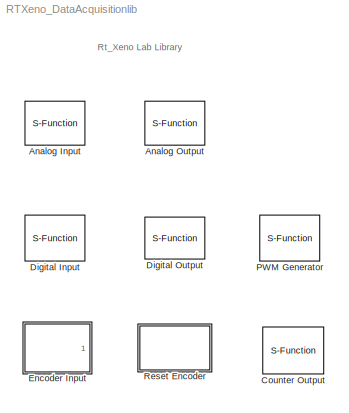
MODEL RTXeno_DataAcquisitionlib
KIND library
BLOCK [S-Function] Analog Input
  EnableBusSupport = off
  FunctionName = sfun_xeno_adc
  MaskCallbackString = |
  MaskDescription = This block is used to select A/D converter parameters for selected data acquisition device.\nParameters are analog input channel(s) to use, operation mode. Operation mode is a scalar entry.\nOther parameter is an array whose size must be same as number of analog input channels, e.g [0 1 ..]
  MaskDisplay = fprintf('ADC')
  MaskEnableString = on,on
  MaskIconFrame = on
  MaskIconOpaque = on
  MaskIconRotate = none
  MaskIconUnits = autoscale
  MaskPortRotate = default
  MaskPromptString = Analog Input Channels|Operation Range
  MaskStyleString = edit,edit
  MaskToolTipString = on,on
  MaskTunableValueString = off,off
  MaskType = RTXeno-Lab A/D Converter Block
  MaskValueString = [ 0 1 2 3 4 5 6 7]|0
  MaskVariables = channel=@1;range=@2;
  MaskVisibilityString = on,on
  Parameters = channel,range
  Ports = [0, 1]
  SID = 1
BLOCK [S-Function] Analog Output
  EnableBusSupport = off
  FunctionName = sfun_xeno_dac
  MaskCallbackString = |||
  MaskDescription = This block is used to select D/A converter parameters for selected data acquisition device.\nParameters are analog output channel(s), operation mode, initial value(s) and final value(s). Operation mode is a scalar entry.\nOther parameters are arrays whose size must be same as number of analog output channels, e.g [0 1 ..]
  MaskDisplay = fprintf('DAC');\n\n
  MaskEnableString = on,on,on,on
  MaskIconFrame = on
  MaskIconOpaque = on
  MaskIconRotate = none
  MaskIconUnits = autoscale
  MaskPortRotate = default
  MaskPromptString = Analog Output Channel(s)|Operation Mode|Initial Value(s)|Final Value(s)
  MaskSelfModifiable = on
  MaskStyleString = edit,popup(Unipolar 10V|Bipolar 5V|Bipolar 10V),edit,edit
  MaskToolTipString = on,on,on,on
  MaskTunableValueString = off,off,off,off
  MaskType = RTXeno-Lab D/A Converter Block
  MaskValueString = [0 0 0 0 0 0 0 0]|Bipolar 10V|[0 0 0 0 0 0 0 0]|[0 0 0 0 0 0 0 0]
  MaskVariables = channel=@1;mode=@2;val=@3;fval=@4;
  MaskVisibilityString = on,on,on,on
  Parameters = channel,mode,val,fval
  Ports = [1]
  SID = 4
  Tag = sss
BLOCK [S-Function] Counter Output
  EnableBusSupport = off
  FunctionName = sfun_xeno_counter
  MaskCallbackString = ||
  MaskDescription = Counter block produces square wave signal based on user defined period.\nAlso, clock source can be selected according to the hardware.
  MaskDisplay = fprintf('Counter');
  MaskEnableString = on,on,on
  MaskIconFrame = on
  MaskIconOpaque = on
  MaskIconRotate = none
  MaskIconUnits = autoscale
  MaskPortRotate = default
  MaskPromptString = Clock Source|Period|Cntrlen
  MaskStyleString = popup(Counter|Watchdog),edit,edit
  MaskToolTipString = on,on,on
  MaskTunableValueString = off,off,off
  MaskType = RTXenoLab Counter Block
  MaskValueString = Counter|0|0
  MaskVariables = clock=@1;period=@2;cntrlen=@3;
  MaskVisibilityString = on,on,on
  Parameters = clock,period,cntrlen
  Ports = []
  SID = 3
BLOCK [S-Function] Digital Input
  EnableBusSupport = off
  FunctionName = sfun_xeno_digInput
  MaskDescription = This block is used to configure digital output device for selected data acquisition device.\nParameters are digital input channel(s) to use.\n    All parameters must be entered as array elements. For example  For example if the user wants to use channel 4 then he/she must edit related parameter area  [4].
  MaskDisplay = fprintf(' Digital\\nInput');
  MaskEnableString = on
  MaskIconFrame = on
  MaskIconOpaque = on
  MaskIconRotate = none
  MaskIconUnits = autoscale
  MaskPortRotate = default
  MaskPromptString = Digita Input Channel(s)
  MaskStyleString = edit
  MaskToolTipString = on
  MaskTunableValueString = off
  MaskType = RTXenoLab Digital Input Block
  MaskValueString = [0]
  MaskVariables = channels=@1;
  MaskVisibilityString = on
  Parameters = channels
  Ports = [1, 1]
  SID = 5
BLOCK [S-Function] Digital Output
  EnableBusSupport = off
  FunctionName = sfun_xeno_digOut
  MaskCallbackString = ||
  MaskDescription = This block is used to configure digital output device for selected data acquisition device.\nParameters are digital output channel(s) to use,initial value(s),final value(s).\n    All parameters must be entered as array elements. For example if the user wants to use channel 4 then he/she must edit related parameter area  [4].
  MaskDisplay = fprintf(' Digital\\n Output');
  MaskEnableString = on,on,on
  MaskHelp = Edit digital output channel(s) parameter as [0 ...31...],\nEdit digital initial and final value(s) as [0...1 1 1....] etc.
  MaskIconFrame = on
  MaskIconOpaque = on
  MaskIconRotate = none
  MaskIconUnits = autoscale
  MaskPortRotate = default
  MaskPromptString = Digital Output Channel(s)|Initial Value(s)|Final Value(s)
  MaskStyleString = edit,edit,edit
  MaskToolTipString = on,on,on
  MaskTunableValueString = off,off,off
  MaskType = RTXenoLab Digital Output Block
  MaskValueString = [0 1 2 3 4 5 6 7]|[0 0 0 0 0 0 0 0]|[0 0 0 0 0 0 0 0]
  MaskVariables = channels=@1;initVal=@2;finalVal=@3;
  MaskVisibilityString = on,on,on
  Parameters = channels,initVal,finalVal
  Ports = [1, 1]
  SID = 6
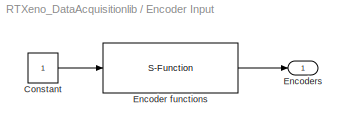
BLOCK [SubSystem] Encoder Input
  FunctionWithSeparateData = off
  MaskCallbackString = |||||||
  MaskDescription = This block is used to configure and read multiple encoder pulses  from data acquisition devices.
  MaskDisplay = fprintf('Encoder');
  MaskEnableString = on,on,on,on,on,on,on,on
  MaskHideContents = off
  MaskIconFrame = on
  MaskIconOpaque = on
  MaskIconRotate = none
  MaskIconUnits = autoscale
  MaskPortRotate = default
  MaskPromptString = Encoder Channel(s)|Count Mode|Binary/Bcd Mode|Quadrature Mode|Index Enable|Index Polarity|Reset Encoder|Offset
  MaskStyleString = edit,popup(Normal|Range Limit|Non-Recycle|Modulo-N),popup(Binary|BCD),popup(1X|2X|3X|4X),checkbox,popup(Positive|Negative),checkbox,edit
  MaskToolTipString = on,on,on,on,on,on,on,on
  MaskTunableValueString = off,off,off,off,off,off,off,off
  MaskType = RTXenoLab Encoder Input Block
  MaskValueString = [0 1]|Normal|Binary|1X|on|Positive|on|[0 0]
  MaskVariables = channel=@1;cmode=@2;bmode=@3;qmode=@4;index=@5;indexpole=@6;reset=@7;set=@8;
  MaskVisibilityString = on,on,on,on,on,on,on,on
  MinAlgLoopOccurrences = off
  Opaque = off
  Ports = [0, 1]
  PropExecContextOutsideSubsystem = off
  RTWSystemCode = Auto
  RequestExecContextInheritance = off
  SID = 62
BLOCK [Constant] Encoder Input/Constant
  SID = 61
BLOCK [S-Function] Encoder Input/Encoder functions
  EnableBusSupport = off
  FunctionName = sfun_xeno_encoder
  Parameters = channel,cmode,bmode,qmode,index,indexpole,reset,set
  Ports = [1, 1]
  SID = 7
BLOCK [Outport] Encoder Input/Encoders
  IconDisplay = Port number
  SID = 63
BLOCK [S-Function] PWM Generator
  EnableBusSupport = off
  FunctionName = sfun_xeno_pwm
  MaskCallbackString = ||
  MaskDescription = PWM generator produces pwm signal based on user defined period and pulse width.\nAlso, clock source can be selected according to the hardware.
  MaskDisplay = fprintf('PWM');
  MaskEnableString = on,on,on
  MaskIconFrame = on
  MaskIconOpaque = on
  MaskIconRotate = none
  MaskIconUnits = autoscale
  MaskPortRotate = default
  MaskPromptString = Clock Source|Period|Cntrlen
  MaskStyleString = popup(Counter|WatchDog),edit,checkbox
  MaskToolTipString = on,on,on
  MaskTunableValueString = off,off,off
  MaskType = RTXenoLab PWM Generator
  MaskValueString = WatchDog|0.5|on
  MaskVariables = clock=@1;period=@2;cntrlen=@3;
  MaskVisibilityString = on,on,on
  Parameters = clock,period,cntrlen
  Ports = [1, 1]
  SID = 8
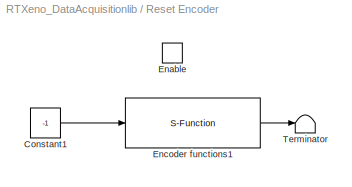
BLOCK [SubSystem] Reset Encoder
  FunctionWithSeparateData = off
  MaskCallbackString = |||||||
  MaskEnableString = on,on,on,on,on,on,on,on
  MaskHideContents = off
  MaskIconFrame = on
  MaskIconOpaque = on
  MaskIconRotate = none
  MaskIconUnits = autoscale
  MaskPortRotate = default
  MaskPromptString = Encoder Channel(s)|Count Mode|Binary/Bcd Mode|Quadrature Mode|Index Enable|Index Polarity|Reset Encoder|Offset
  MaskStyleString = edit,popup(Normal|Range Limit|Non-Recycle|Modulo-N),popup(Binary|Bcd),popup(1X|2X|3X|4X),checkbox,popup(Positive|Negative),checkbox,edit
  MaskToolTipString = on,on,on,on,on,on,on,on
  MaskTunableValueString = on,on,on,on,on,on,on,on
  MaskValueString = [0 1]|Normal|Binary|1X|on|Positive|on|[0 0 ]
  MaskVariables = channel=@1;cmode=@2;bmode=@3;qmode=@4;index=@5;indexpole=@6;reset=@7;set=@8;
  MaskVisibilityString = on,on,on,on,on,on,on,on
  MinAlgLoopOccurrences = off
  Opaque = off
  Ports = [0, 0, 1]
  PropExecContextOutsideSubsystem = off
  RTWSystemCode = Auto
  RequestExecContextInheritance = off
  SID = 69
BLOCK [Constant] Reset Encoder/Constant1
  SID = 65
  Value = -1
BLOCK [EnablePort] Reset Encoder/Enable
  Ports = []
  SID = 71
BLOCK [S-Function] Reset Encoder/Encoder functions1
  EnableBusSupport = off
  FunctionName = sfun_xeno_encoder
  Parameters = channel,cmode,bmode,qmode,index,indexpole,reset,set
  Ports = [1, 1]
  SID = 60
BLOCK [Terminator] Reset Encoder/Terminator
  SID = 72
ANNOTATION (root): Rt_Xeno Lab Library
LINE Encoder Input/Constant:1 -> Encoder Input/Encoder functions:1
LINE Encoder Input/Encoder functions:1 -> Encoder Input/Encoders:1
LINE Reset Encoder/Constant1:1 -> Reset Encoder/Encoder functions1:1
LINE Reset Encoder/Encoder functions1:1 -> Reset Encoder/Terminator:1
